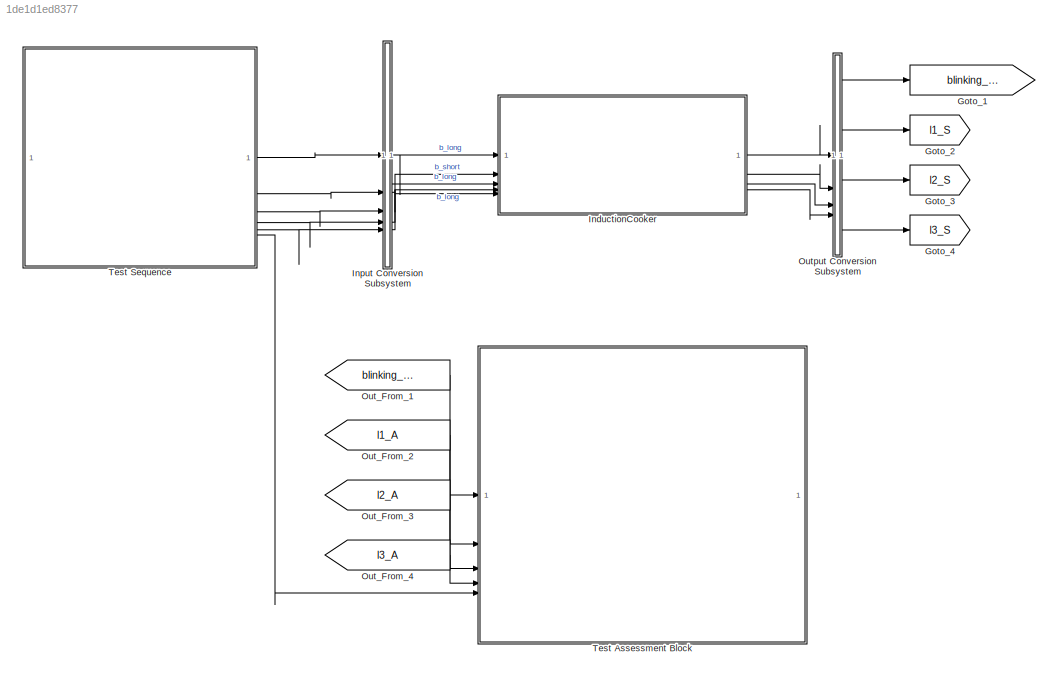
MODEL slx_1de1d1ed8377
KIND model
CONFIG AbsTol = auto
CONFIG EnableMultiTasking = on
CONFIG FixedStep = 0.1
CONFIG MaxStep = auto
CONFIG MinStep = auto
CONFIG RelTol = 1e-3
CONFIG SampleTimeConstraint = Unconstrained
CONFIG SolverName = FixedStepDiscrete
CONFIG StartTime = 0.0
CONFIG StopTime = 2000
BLOCK [Goto] Goto_1
  GotoTag = blinking_period_S
BLOCK [Goto] Goto_2
  GotoTag = l1_S
BLOCK [Goto] Goto_3
  GotoTag = l2_S
BLOCK [Goto] Goto_4
  GotoTag = l3_S
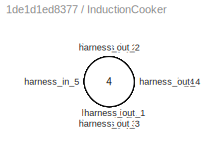
BLOCK [SubSystem] InductionCooker
  Tag = __SL_testing_harness_stub_
BLOCK [Inport] InductionCooker/harness_in_1
BLOCK [Inport] InductionCooker/harness_in_2
  Port = 2
BLOCK [Inport] InductionCooker/harness_in_3
  Port = 3
BLOCK [Inport] InductionCooker/harness_in_4
  Port = 4
BLOCK [Inport] InductionCooker/harness_in_5
  Port = 5
BLOCK [Outport] InductionCooker/harness_out_1
BLOCK [Outport] InductionCooker/harness_out_2
  Port = 2
BLOCK [Outport] InductionCooker/harness_out_3
  Port = 3
BLOCK [Outport] InductionCooker/harness_out_4
  Port = 4
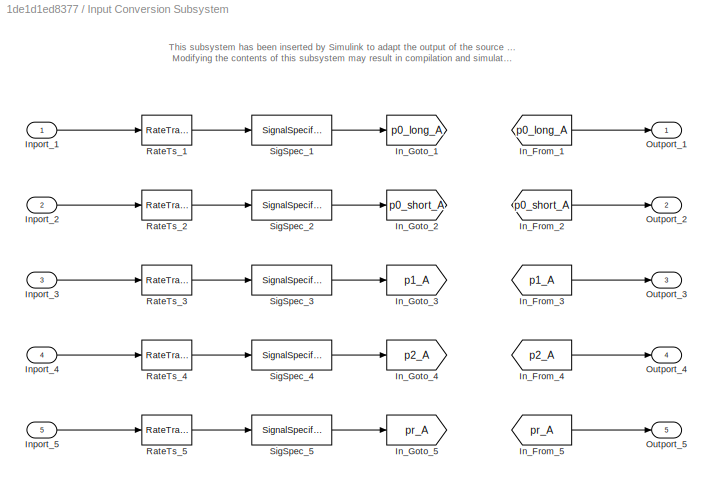
BLOCK [SubSystem] Input Conversion Subsystem
  AttributesFormatString = %<Description>
  Description = Signal spec.\nand routing
  Permissions = ReadOnly
  PermitHierarchicalResolution = ExplicitOnly
  Tag = __SLT_ICS__
  TreatAsGroupedWhenPropagatingVariantConditions = off
  UserDataPersistent = on
BLOCK [From] Input Conversion Subsystem/In_From_1
  GotoTag = p0_long_A
  TagVisibility = global
BLOCK [From] Input Conversion Subsystem/In_From_2
  GotoTag = p0_short_A
  TagVisibility = global
BLOCK [From] Input Conversion Subsystem/In_From_3
  GotoTag = p1_A
  TagVisibility = global
BLOCK [From] Input Conversion Subsystem/In_From_4
  GotoTag = p2_A
  TagVisibility = global
BLOCK [From] Input Conversion Subsystem/In_From_5
  GotoTag = pr_A
  TagVisibility = global
BLOCK [Goto] Input Conversion Subsystem/In_Goto_1
  GotoTag = p0_long_A
  TagVisibility = global
BLOCK [Goto] Input Conversion Subsystem/In_Goto_2
  GotoTag = p0_short_A
  TagVisibility = global
BLOCK [Goto] Input Conversion Subsystem/In_Goto_3
  GotoTag = p1_A
  TagVisibility = global
BLOCK [Goto] Input Conversion Subsystem/In_Goto_4
  GotoTag = p2_A
  TagVisibility = global
BLOCK [Goto] Input Conversion Subsystem/In_Goto_5
  GotoTag = pr_A
  TagVisibility = global
BLOCK [Inport] Input Conversion Subsystem/Inport_1
BLOCK [Inport] Input Conversion Subsystem/Inport_2
  Port = 2
BLOCK [Inport] Input Conversion Subsystem/Inport_3
  Port = 3
BLOCK [Inport] Input Conversion Subsystem/Inport_4
  Port = 4
BLOCK [Inport] Input Conversion Subsystem/Inport_5
  Port = 5
BLOCK [Outport] Input Conversion Subsystem/Outport_1
BLOCK [Outport] Input Conversion Subsystem/Outport_2
  Port = 2
BLOCK [Outport] Input Conversion Subsystem/Outport_3
  Port = 3
BLOCK [Outport] Input Conversion Subsystem/Outport_4
  Port = 4
BLOCK [Outport] Input Conversion Subsystem/Outport_5
  Port = 5
BLOCK [RateTransition] Input Conversion Subsystem/RateTs_1
  OutPortSampleTime = 0.1
BLOCK [RateTransition] Input Conversion Subsystem/RateTs_2
  OutPortSampleTime = 0.1
BLOCK [RateTransition] Input Conversion Subsystem/RateTs_3
  OutPortSampleTime = 0.1
BLOCK [RateTransition] Input Conversion Subsystem/RateTs_4
  OutPortSampleTime = 0.1
BLOCK [RateTransition] Input Conversion Subsystem/RateTs_5
  OutPortSampleTime = 0.1
BLOCK [SignalSpecification] Input Conversion Subsystem/SigSpec_1
  Dimensions = [1]
  OutDataTypeStr = boolean
  SampleTime = 0.1
  SignalType = real
  VarSizeSig = No
BLOCK [SignalSpecification] Input Conversion Subsystem/SigSpec_2
  Dimensions = [1]
  OutDataTypeStr = boolean
  SampleTime = 0.1
  SignalType = real
  VarSizeSig = No
BLOCK [SignalSpecification] Input Conversion Subsystem/SigSpec_3
  Dimensions = [1]
  OutDataTypeStr = boolean
  SampleTime = 0.1
  SignalType = real
  VarSizeSig = No
BLOCK [SignalSpecification] Input Conversion Subsystem/SigSpec_4
  Dimensions = [1]
  OutDataTypeStr = boolean
  SampleTime = 0.1
  SignalType = real
  VarSizeSig = No
BLOCK [SignalSpecification] Input Conversion Subsystem/SigSpec_5
  Dimensions = [1]
  OutDataTypeStr = boolean
  SampleTime = 0.1
  SignalType = real
  VarSizeSig = No
BLOCK [From] Out_From_1
  GotoTag = blinking_period_A
  TagVisibility = global
BLOCK [From] Out_From_2
  GotoTag = l1_A
  TagVisibility = global
BLOCK [From] Out_From_3
  GotoTag = l2_A
  TagVisibility = global
BLOCK [From] Out_From_4
  GotoTag = l3_A
  TagVisibility = global
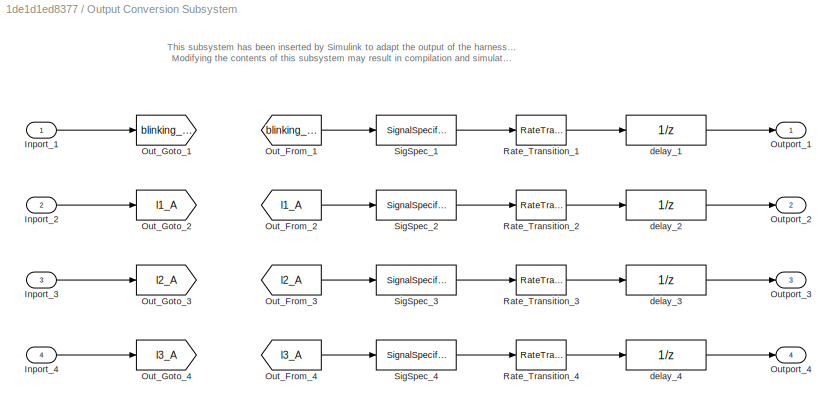
BLOCK [SubSystem] Output Conversion Subsystem
  AttributesFormatString = %<Description>
  Description = Signal spec.\nand routing
  Permissions = ReadOnly
  PermitHierarchicalResolution = ExplicitOnly
  Tag = __SLT_OCS__
  TreatAsGroupedWhenPropagatingVariantConditions = off
  UserDataPersistent = on
BLOCK [Inport] Output Conversion Subsystem/Inport_1
BLOCK [Inport] Output Conversion Subsystem/Inport_2
  Port = 2
BLOCK [Inport] Output Conversion Subsystem/Inport_3
  Port = 3
BLOCK [Inport] Output Conversion Subsystem/Inport_4
  Port = 4
BLOCK [From] Output Conversion Subsystem/Out_From_1
  GotoTag = blinking_period_A
  TagVisibility = global
BLOCK [From] Output Conversion Subsystem/Out_From_2
  GotoTag = l1_A
  TagVisibility = global
BLOCK [From] Output Conversion Subsystem/Out_From_3
  GotoTag = l2_A
  TagVisibility = global
BLOCK [From] Output Conversion Subsystem/Out_From_4
  GotoTag = l3_A
  TagVisibility = global
BLOCK [Goto] Output Conversion Subsystem/Out_Goto_1
  GotoTag = blinking_period_A
  TagVisibility = global
BLOCK [Goto] Output Conversion Subsystem/Out_Goto_2
  GotoTag = l1_A
  TagVisibility = global
BLOCK [Goto] Output Conversion Subsystem/Out_Goto_3
  GotoTag = l2_A
  TagVisibility = global
BLOCK [Goto] Output Conversion Subsystem/Out_Goto_4
  GotoTag = l3_A
  TagVisibility = global
BLOCK [Outport] Output Conversion Subsystem/Outport_1
BLOCK [Outport] Output Conversion Subsystem/Outport_2
  Port = 2
BLOCK [Outport] Output Conversion Subsystem/Outport_3
  Port = 3
BLOCK [Outport] Output Conversion Subsystem/Outport_4
  Port = 4
BLOCK [RateTransition] Output Conversion Subsystem/Rate_Transition_1
  OutPortSampleTimeOpt = Inherit
BLOCK [RateTransition] Output Conversion Subsystem/Rate_Transition_2
  OutPortSampleTimeOpt = Inherit
BLOCK [RateTransition] Output Conversion Subsystem/Rate_Transition_3
  OutPortSampleTimeOpt = Inherit
BLOCK [RateTransition] Output Conversion Subsystem/Rate_Transition_4
  OutPortSampleTimeOpt = Inherit
BLOCK [SignalSpecification] Output Conversion Subsystem/SigSpec_1
  Dimensions = [1]
  OutDataTypeStr = uint32
  SampleTime = 0.1
  SignalType = real
  VarSizeSig = No
BLOCK [SignalSpecification] Output Conversion Subsystem/SigSpec_2
  Dimensions = [1]
  OutDataTypeStr = boolean
  SampleTime = 0.1
  SignalType = real
  VarSizeSig = No
BLOCK [SignalSpecification] Output Conversion Subsystem/SigSpec_3
  Dimensions = [1]
  OutDataTypeStr = boolean
  SampleTime = 0.1
  SignalType = real
  VarSizeSig = No
BLOCK [SignalSpecification] Output Conversion Subsystem/SigSpec_4
  Dimensions = [1]
  OutDataTypeStr = boolean
  SampleTime = 0.1
  SignalType = real
  VarSizeSig = No
BLOCK [UnitDelay] Output Conversion Subsystem/delay_1
  SampleTime = -1
BLOCK [UnitDelay] Output Conversion Subsystem/delay_2
  SampleTime = -1
BLOCK [UnitDelay] Output Conversion Subsystem/delay_3
  SampleTime = -1
BLOCK [UnitDelay] Output Conversion Subsystem/delay_4
  SampleTime = -1
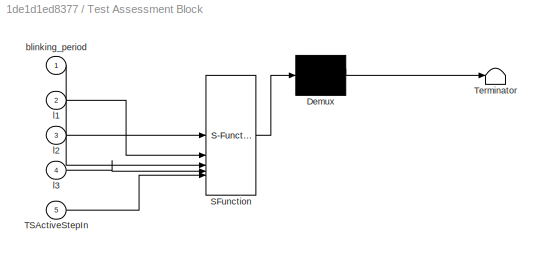
BLOCK [SubSystem] Test Assessment Block
  ErrorFcn = Stateflow.Translate.translate
  PermitHierarchicalResolution = ExplicitOnly
  SFBlockType = Test Sequence
  ShowPortLabels = none
  Tag = __SLT_ASMT__
  TreatAsAtomicUnit = on
BLOCK [Demux] Test Assessment Block/ Demux 
  Outputs = 1
BLOCK [S-Function] Test Assessment Block/ SFunction 
  EnableBusSupport = on
  FunctionName = sf_sfun
  Parameters = 1
  PortCounts = [5 1]
  SFcnIsStateOwnerBlock = off
  SFunctionDeploymentMode = off
  Tag = Stateflow S-Function 1
BLOCK [Terminator] Test Assessment Block/ Terminator 
BLOCK [Inport] Test Assessment Block/TSActiveStepIn
  Port = 5
BLOCK [Inport] Test Assessment Block/blinking_period
BLOCK [Inport] Test Assessment Block/l1
  Port = 2
BLOCK [Inport] Test Assessment Block/l2
  Port = 3
BLOCK [Inport] Test Assessment Block/l3
  Port = 4
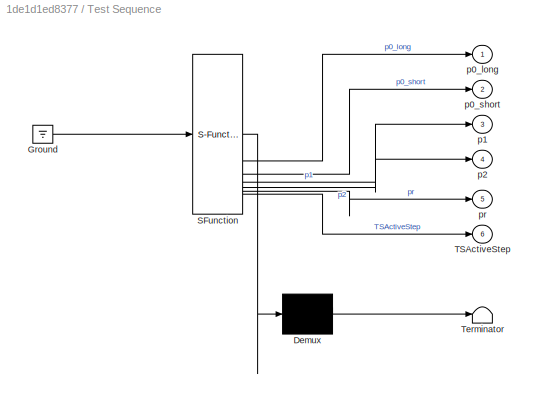
BLOCK [SubSystem] Test Sequence
  ErrorFcn = Stateflow.Translate.translate
  PermitHierarchicalResolution = ExplicitOnly
  SFBlockType = Test Sequence
  ShowPortLabels = none
  TreatAsAtomicUnit = on
BLOCK [Demux] Test Sequence/ Demux 
  Outputs = 1
BLOCK [Ground] Test Sequence/ Ground 
BLOCK [S-Function] Test Sequence/ SFunction 
  EnableBusSupport = on
  FunctionName = sf_sfun
  Parameters = 1
  PortCounts = [1 7]
  SFcnIsStateOwnerBlock = off
  SFunctionDeploymentMode = off
  Tag = Stateflow S-Function 4
BLOCK [Terminator] Test Sequence/ Terminator 
BLOCK [Outport] Test Sequence/TSActiveStep
  Port = 6
BLOCK [Outport] Test Sequence/p0_long
BLOCK [Outport] Test Sequence/p0_short
  Port = 2
BLOCK [Outport] Test Sequence/p1
  Port = 3
BLOCK [Outport] Test Sequence/p2
  Port = 4
BLOCK [Outport] Test Sequence/pr
  Port = 5
ANNOTATION Input Conversion Subsystem: This subsystem has been inserted by Simulink to adapt the output of the source blocks to the interface required by the harnessed component. Modifying the contents of this subsystem may result in compilation and simulation failure.
ANNOTATION Output Conversion Subsystem: This subsystem has been inserted by Simulink to adapt the output of the harnessed component to the interface required by the sink blocks. Modifying the contents of this subsystem may result in compilation and simulation failure.
LINE InductionCooker:1 -> Output Conversion Subsystem:1
LINE InductionCooker:2 -> Output Conversion Subsystem:2
LINE InductionCooker:3 -> Output Conversion Subsystem:3
LINE InductionCooker:4 -> Output Conversion Subsystem:4
LINE Input Conversion Subsystem/In_From_1:1 -> Input Conversion Subsystem/Outport_1:1
LINE Input Conversion Subsystem/In_From_2:1 -> Input Conversion Subsystem/Outport_2:1
LINE Input Conversion Subsystem/In_From_3:1 -> Input Conversion Subsystem/Outport_3:1
LINE Input Conversion Subsystem/In_From_4:1 -> Input Conversion Subsystem/Outport_4:1
LINE Input Conversion Subsystem/In_From_5:1 -> Input Conversion Subsystem/Outport_5:1
LINE Input Conversion Subsystem/Inport_1:1 -> Input Conversion Subsystem/RateTs_1:1
LINE Input Conversion Subsystem/Inport_2:1 -> Input Conversion Subsystem/RateTs_2:1
LINE Input Conversion Subsystem/Inport_3:1 -> Input Conversion Subsystem/RateTs_3:1
LINE Input Conversion Subsystem/Inport_4:1 -> Input Conversion Subsystem/RateTs_4:1
LINE Input Conversion Subsystem/Inport_5:1 -> Input Conversion Subsystem/RateTs_5:1
LINE Input Conversion Subsystem/RateTs_1:1 -> Input Conversion Subsystem/SigSpec_1:1
LINE Input Conversion Subsystem/RateTs_2:1 -> Input Conversion Subsystem/SigSpec_2:1
LINE Input Conversion Subsystem/RateTs_3:1 -> Input Conversion Subsystem/SigSpec_3:1
LINE Input Conversion Subsystem/RateTs_4:1 -> Input Conversion Subsystem/SigSpec_4:1
LINE Input Conversion Subsystem/RateTs_5:1 -> Input Conversion Subsystem/SigSpec_5:1
LINE Input Conversion Subsystem/SigSpec_1:1 -> Input Conversion Subsystem/In_Goto_1:1
LINE Input Conversion Subsystem/SigSpec_2:1 -> Input Conversion Subsystem/In_Goto_2:1
LINE Input Conversion Subsystem/SigSpec_3:1 -> Input Conversion Subsystem/In_Goto_3:1
LINE Input Conversion Subsystem/SigSpec_4:1 -> Input Conversion Subsystem/In_Goto_4:1
LINE Input Conversion Subsystem/SigSpec_5:1 -> Input Conversion Subsystem/In_Goto_5:1
LINE Input Conversion Subsystem:1 -> InductionCooker:1
LINE Input Conversion Subsystem:2 -> InductionCooker:2
LINE Input Conversion Subsystem:3 -> InductionCooker:3
LINE Input Conversion Subsystem:4 -> InductionCooker:4
LINE Input Conversion Subsystem:5 -> InductionCooker:5
LINE Out_From_1:1 -> Test Assessment Block:1
LINE Out_From_2:1 -> Test Assessment Block:2
LINE Out_From_3:1 -> Test Assessment Block:3
LINE Out_From_4:1 -> Test Assessment Block:4
LINE Output Conversion Subsystem/Inport_1:1 -> Output Conversion Subsystem/Out_Goto_1:1
LINE Output Conversion Subsystem/Inport_2:1 -> Output Conversion Subsystem/Out_Goto_2:1
LINE Output Conversion Subsystem/Inport_3:1 -> Output Conversion Subsystem/Out_Goto_3:1
LINE Output Conversion Subsystem/Inport_4:1 -> Output Conversion Subsystem/Out_Goto_4:1
LINE Output Conversion Subsystem/Out_From_1:1 -> Output Conversion Subsystem/SigSpec_1:1
LINE Output Conversion Subsystem/Out_From_2:1 -> Output Conversion Subsystem/SigSpec_2:1
LINE Output Conversion Subsystem/Out_From_3:1 -> Output Conversion Subsystem/SigSpec_3:1
LINE Output Conversion Subsystem/Out_From_4:1 -> Output Conversion Subsystem/SigSpec_4:1
LINE Output Conversion Subsystem/Rate_Transition_1:1 -> Output Conversion Subsystem/delay_1:1
LINE Output Conversion Subsystem/Rate_Transition_2:1 -> Output Conversion Subsystem/delay_2:1
LINE Output Conversion Subsystem/Rate_Transition_3:1 -> Output Conversion Subsystem/delay_3:1
LINE Output Conversion Subsystem/Rate_Transition_4:1 -> Output Conversion Subsystem/delay_4:1
LINE Output Conversion Subsystem/SigSpec_1:1 -> Output Conversion Subsystem/Rate_Transition_1:1
LINE Output Conversion Subsystem/SigSpec_2:1 -> Output Conversion Subsystem/Rate_Transition_2:1
LINE Output Conversion Subsystem/SigSpec_3:1 -> Output Conversion Subsystem/Rate_Transition_3:1
LINE Output Conversion Subsystem/SigSpec_4:1 -> Output Conversion Subsystem/Rate_Transition_4:1
LINE Output Conversion Subsystem/delay_1:1 -> Output Conversion Subsystem/Outport_1:1
LINE Output Conversion Subsystem/delay_2:1 -> Output Conversion Subsystem/Outport_2:1
LINE Output Conversion Subsystem/delay_3:1 -> Output Conversion Subsystem/Outport_3:1
LINE Output Conversion Subsystem/delay_4:1 -> Output Conversion Subsystem/Outport_4:1
LINE Output Conversion Subsystem:1 -> Goto_1:1
LINE Output Conversion Subsystem:2 -> Goto_2:1
LINE Output Conversion Subsystem:3 -> Goto_3:1
LINE Output Conversion Subsystem:4 -> Goto_4:1
LINE Test Sequence:1 -> Input Conversion Subsystem:1
LINE Test Sequence:2 -> Input Conversion Subsystem:2
LINE Test Sequence:3 -> Input Conversion Subsystem:3
LINE Test Sequence:4 -> Input Conversion Subsystem:4
LINE Test Sequence:5 -> Input Conversion Subsystem:5
LINE Test Sequence:6 -> Test Assessment Block:5
CHART Test Assessment Block states=11 transitions=39
  STATE_LABEL 'Scenario_1'
  STATE_LABEL 'Run'
  STATE_LABEL 'VerifyInitS5\nverify(blinking_period == 0 & ~l1 & ~l2 & ~l3)'
  STATE_LABEL 'VerifyOnWithPotPresentS5\nverify(blinking_period == 0 & l1 & ~l2 & ~l3)'
  STATE_LABEL 'VerifyInactiveWithPotPresentS5\nverify(blinking_period == 0 & l1 & ~l2 & ~l3)'
  STATE_LABEL 'VerifyPowerIncreaseWithPotPresentS5\nverify(blinking_period == 0 & l1 & ~l2 & ~l3)'
  STATE_LABEL 'VerifyPowerIncreaseWithPotPresentAgainS5\nverify(blinking_period == 0 & l1 & ~l2 & ~l3)'
  STATE_LABEL 'VerifyActive500WS5\nverify(blinking_period == 1000 & l1 & l2 & ~l3)'
  STATE_LABEL 'VerifyLongPressOffWithPotPresentS5\nverify(blinking_period == 0 & ~l1 & ~l2 & ~l3)'
  STATE_LABEL 'VerifyReleaseOffS5\nverify(blinking_period == 0 & ~l1 & ~l2 & ~l3)'
  STATE_LABEL 'step_1_2'
  STATE_LABEL '[TSActiveStepIn == TSActiveStepEnumHInductionCooker.InitS5\n]'
  STATE_LABEL '[~in(Scenario_1.Run.VerifyInitS5)]'
  STATE_LABEL '[TSActiveStepIn == TSActiveStepEnumHInductionCooker.OnWithPotPresentS5\n]'
  STATE_LABEL '[~in(Scenario_1.Run.VerifyOnWithPotPresentS5)]'
  STATE_LABEL '[TSActiveStepIn == TSActiveStepEnumHInductionCooker.InactiveWithPotPresentS5\n]'
  STATE_LABEL '[~in(Scenario_1.Run.VerifyInactiveWithPotPresentS5)]'
  STATE_LABEL '[TSActiveStepIn == TSActiveStepEnumHInductionCooker.PowerIncreaseWithPotPresentS5\n]'
  STATE_LABEL '[~in(Scenario_1.Run.VerifyPowerIncreaseWithPotPresentS5)]'
  STATE_LABEL '[TSActiveStepIn == TSActiveStepEnumHInductionCooker.PowerIncreaseWithPotPresentAgainS5\n]'
  STATE_LABEL '[~in(Scenario_1.Run.VerifyPowerIncreaseWithPotPresentAgainS5)]'
  STATE_LABEL '[TSActiveStepIn == TSActiveStepEnumHInductionCooker.Active500WS5\n]'
  STATE_LABEL '[~in(Scenario_1.Run.VerifyActive500WS5)]'
  STATE_LABEL '[TSActiveStepIn == TSActiveStepEnumHInductionCooker.LongPressOffWithPotPresentS5\n]'
  STATE_LABEL '[~in(Scenario_1.Run.VerifyLongPressOffWithPotPresentS5)]'
  STATE_LABEL '[TSActiveStepIn == TSActiveStepEnumHInductionCooker.ReleaseOffS5\n]'
  STATE_LABEL '[~in(Scenario_1.Run.VerifyReleaseOffS5)]'
  STATE_LABEL '[~in(Scenario_1.Run.step_1_2)]'
  STATE_LABEL 'Run'
  STATE_LABEL 'VerifyInitS5\nverify(blinking_period == 0 & ~l1 & ~l2 & ~l3)'
  STATE_LABEL 'VerifyOnWithPotPresentS5\nverify(blinking_period == 0 & l1 & ~l2 & ~l3)'
  STATE_LABEL 'VerifyInactiveWithPotPresentS5\nverify(blinking_period == 0 & l1 & ~l2 & ~l3)'
  STATE_LABEL 'VerifyPowerIncreaseWithPotPresentS5\nverify(blinking_period == 0 & l1 & ~l2 & ~l3)'
  STATE_LABEL 'VerifyPowerIncreaseWithPotPresentAgainS5\nverify(blinking_period == 0 & l1 & ~l2 & ~l3)'
  STATE_LABEL 'VerifyActive500WS5\nverify(blinking_period == 1000 & l1 & l2 & ~l3)'
  STATE_LABEL 'VerifyLongPressOffWithPotPresentS5\nverify(blinking_period == 0 & ~l1 & ~l2 & ~l3)'
  STATE_LABEL 'VerifyReleaseOffS5\nverify(blinking_period == 0 & ~l1 & ~l2 & ~l3)'
  STATE_LABEL 'step_1_2'
  STATE_LABEL '[TSActiveStepIn == TSActiveStepEnumHInductionCooker.InitS5\n]'
  STATE_LABEL '[~in(Scenario_1.Run.VerifyInitS5)]'
CHART Test Sequence states=11 transitions=11
  STATE_LABEL 'Scenario_1'
  STATE_LABEL 'InitS5\n\np0_long = true;\np0_short = true;\np1 = true;\np2 = true;\npr = false;'
  STATE_LABEL 'OnWithPotPresentS5\np0_long = true;\np0_short = false;\np1 = true;\np2 = true;\npr = false;'
  STATE_LABEL 'InactiveWithPotPresentS5\np0_long = true;\np0_short = true;\np1 = true;\np2 = true;\npr = false;'
  STATE_LABEL 'PowerIncreaseWithPotPresentS5\np0_long = true;\np0_short = true;\np1 = false;\np2 = true;\npr =  false;'
  STATE_LABEL 'Waiting300WS5\np0_long = true;\np0_short = true;\np1 = true;\np2 = true;\npr =  false;'
  STATE_LABEL 'PowerIncreaseWithPotPresentAgainS5\np0_long = true;\np0_short = true;\np1 = false;\np2 = true;\npr =  false;'
  STATE_LABEL 'Waiting500WS5\np0_long = true;\np0_short = true;\np1 = true;\np2 = true;\npr =  false;'
  STATE_LABEL 'Active500WS5\np0_long = true;\np0_short = true;\np1 = true;\np2 = true;\npr =  false;'
  STATE_LABEL 'LongPressOffWithPotPresentS5\np0_long = false;\np0_short = true;\np1 = true;\np2 = true;\npr =  false;'
  STATE_LABEL 'ReleaseOffS5\np0_long = true;\np0_short = true;\np1 = true;\np2 = true;\npr =  false;'
  STATE_LABEL '[\ntrue\n]'
  STATE_LABEL '[\ntrue\n]'
  STATE_LABEL '[\ntrue\n]'
  STATE_LABEL '[\ntrue\n]'
  STATE_LABEL '[\nafter(2, sec)\n]'
  STATE_LABEL '[\ntrue\n]'
  STATE_LABEL '[\nafter(5, sec)\n]'
  STATE_LABEL '[\nafter(8, sec)\n]'
  STATE_LABEL '[\ntrue\n]'
  STATE_LABEL 'InitS5\n\np0_long = true;\np0_short = true;\np1 = true;\np2 = true;\npr = false;'
  STATE_LABEL 'OnWithPotPresentS5\np0_long = true;\np0_short = false;\np1 = true;\np2 = true;\npr = false;'
  STATE_LABEL 'InactiveWithPotPresentS5\np0_long = true;\np0_short = true;\np1 = true;\np2 = true;\npr = false;'
  STATE_LABEL 'PowerIncreaseWithPotPresentS5\np0_long = true;\np0_short = true;\np1 = false;\np2 = true;\npr =  false;'
  STATE_LABEL 'Waiting300WS5\np0_long = true;\np0_short = true;\np1 = true;\np2 = true;\npr =  false;'
  STATE_LABEL 'PowerIncreaseWithPotPresentAgainS5\np0_long = true;\np0_short = true;\np1 = false;\np2 = true;\npr =  false;'
  STATE_LABEL 'Waiting500WS5\np0_long = true;\np0_short = true;\np1 = true;\np2 = true;\npr =  false;'
  STATE_LABEL 'Active500WS5\np0_long = true;\np0_short = true;\np1 = true;\np2 = true;\npr =  false;'
  STATE_LABEL 'LongPressOffWithPotPresentS5\np0_long = false;\np0_short = true;\np1 = true;\np2 = true;\npr =  false;'
  STATE_LABEL 'ReleaseOffS5\np0_long = true;\np0_short = true;\np1 = true;\np2 = true;\npr =  false;'
